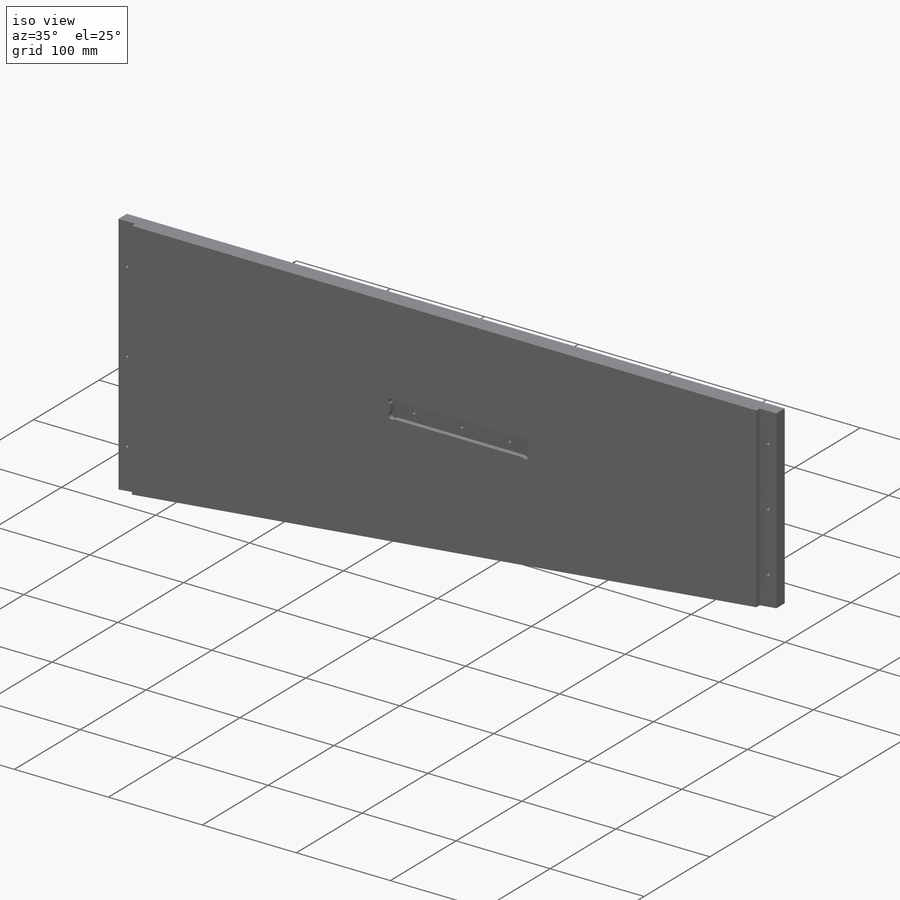
[diagram: iso view]
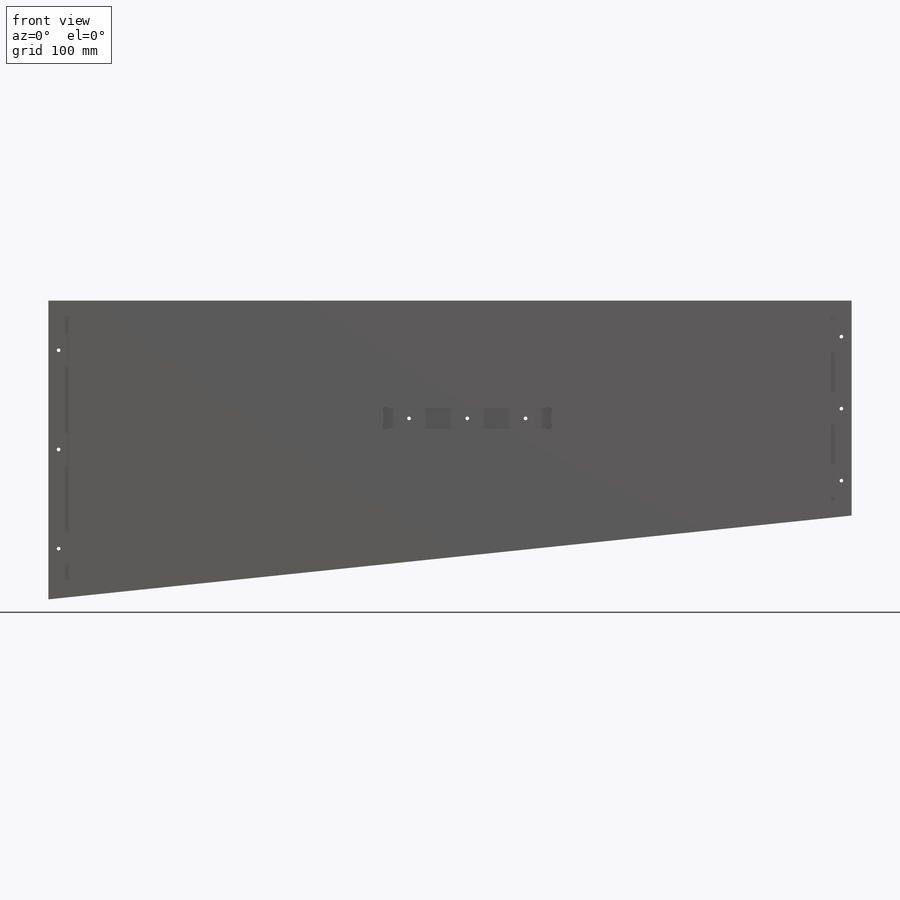
[diagram: front view]
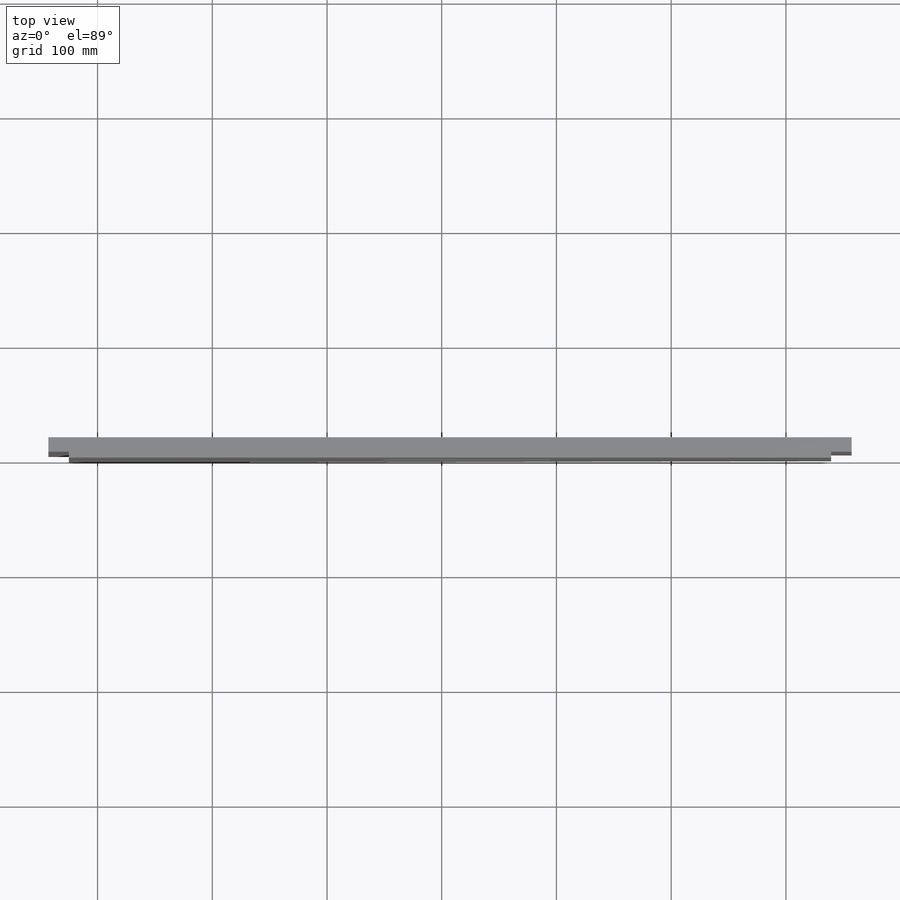
[diagram: top view]
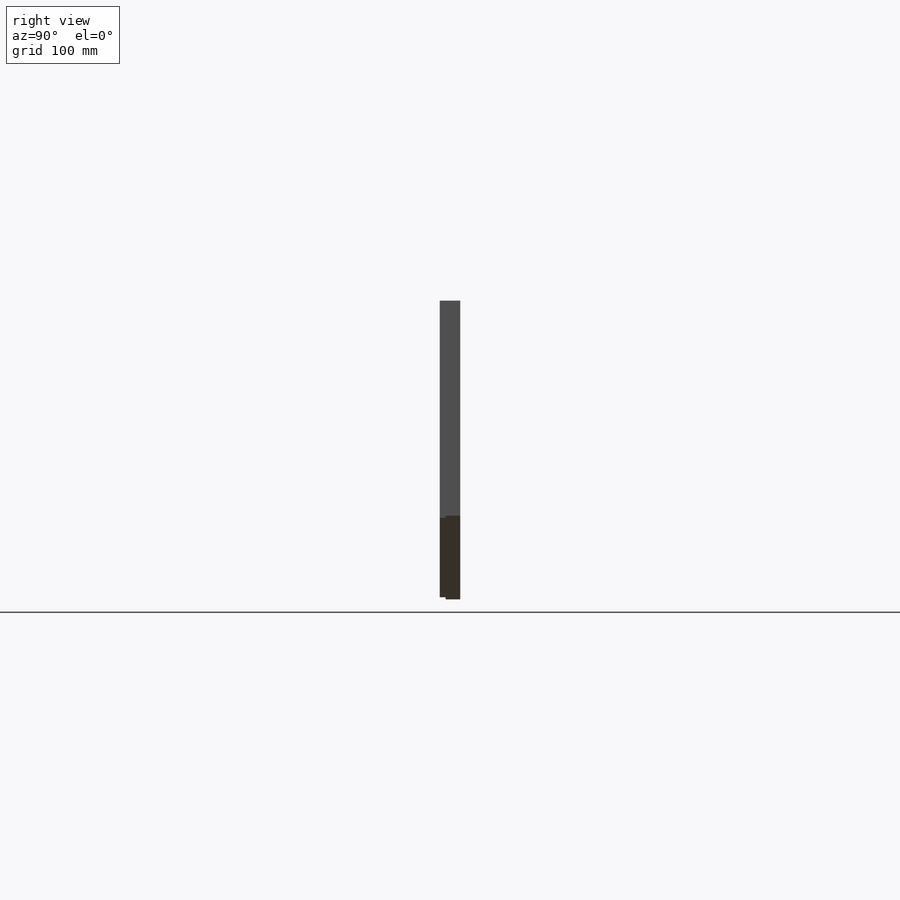
[diagram: right view]
SOLIDWORKS PART (.sldprt)
format: sldprt  version: not decoded by parser v0  size: 2,090,496 bytes
history: native  units: mm
features: sketch x6, cut_extrude x3, extrude x2, material x1 + 1 further entry (+15 scaffold rows collapsed)
feature tree (28):
  scaffold x15  (default folders/planes/origin — collapsed)
  material  "Pine"
  "Design Table"
  sketch  "Sketch1"
  sketch  "HeadSideLeftOutline"
  extrude  "HeadSideLeft_Thickness"  Depth=21.59mm
  sketch  "HeadSideLeftLedge"  dims[D1=21.59mm D2=21.59mm]
  extrude  "HeadSideLeftLedge_Thickness"  Depth=16.51mm
  sketch  "Sketch4"  dims[D1=21.59mm]
  cut_extrude  "Cut-Extrude2"  Depth=5.08mm
  sketch  "Sketch6"  dims[c1.D1=3.175mm c2.D1=135.0deg c3.D1=3.175mm c4.D1=135.0deg c5.D1=3.175mm c6.D1=45.0deg c7.D1=3.175mm c8.D1=45.0deg c9.D1=3.175mm c10.D1=45.0deg c11.D1=~2.245064mm c12.D1=45.0deg c12.D2=3.175mm c13.D2=45.0deg c13.D3=3.175mm c13.D4=3.175mm c13.D5=~2.245064mm c14.D5=45.0deg c14.D6=3.175mm c15.D6=45.0deg c15.D7=3.175mm c15.D8=3.175mm]
  cut_extrude  "Cut-Extrude3"  [1 undecoded]
  sketch  "Sketch3"
  cut_extrude  "Cut-Extrude1"  [1 undecoded]
decode coverage: 6 of 11 modeling features carry decoded parameters; 1 rows unclassified (native names shown)
note: ~ marks probable driven/reference dimensions
note: 2 parameter values undecoded
note: suppression state not decoded; provenance and decode notes live in map.json
